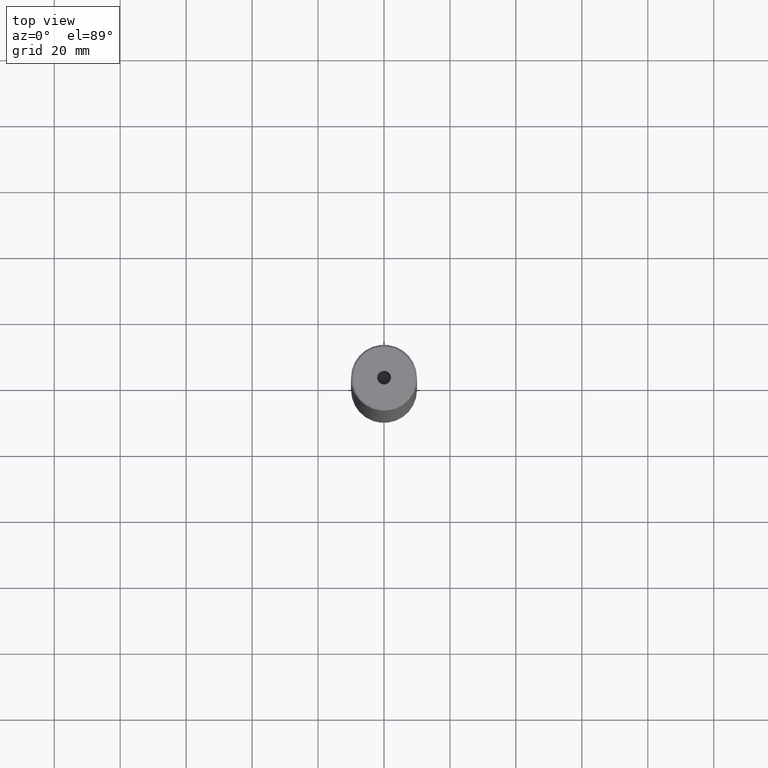
[diagram: clean part render]
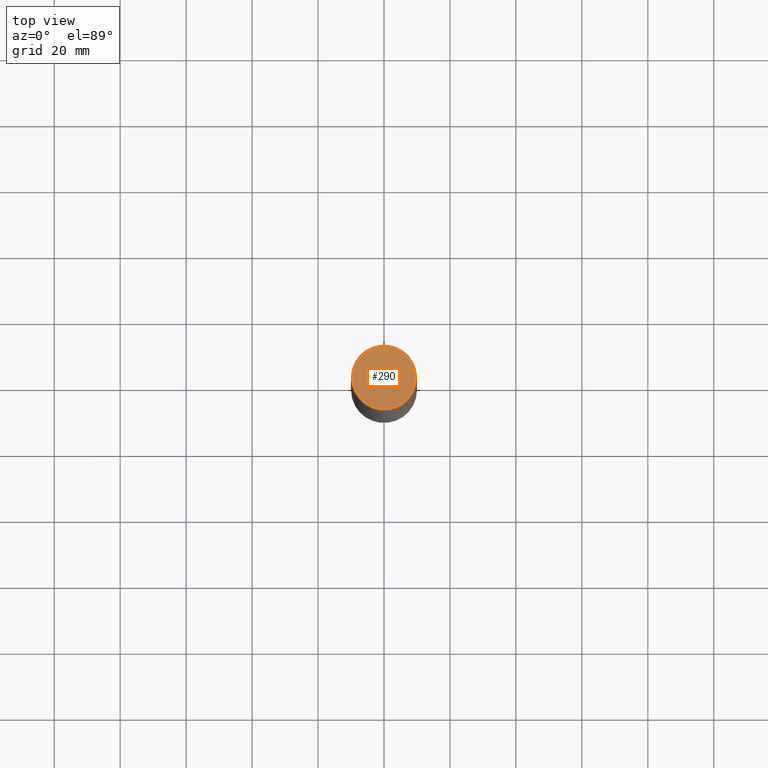
[diagram: same view with one face highlighted and labeled with its STEP entity id]
A machine part, top view. The second image highlights one B-rep face of the part: STEP entity #290.
In plain terms, the highlighted planar face has unit normal (0, -0, 1).
Its self-contained STEP definition (entity closure, byte-faithful):
#13 = CIRCLE ( 'NONE', #237, 2.099999999999998757 ) ;
#30 = CARTESIAN_POINT ( 'NONE',  ( 0.000000000000000000, 0.000000000000000000, 0.000000000000000000 ) ) ;
#50 = AXIS2_PLACEMENT_3D ( 'NONE', #482, #578, #246 ) ;
#70 = EDGE_LOOP ( 'NONE', ( #326, #411 ) ) ;
#75 = EDGE_CURVE ( 'NONE', #558, #91, #254, .T. ) ;
#76 = CIRCLE ( 'NONE', #433, 9.500000000000008882 ) ;
#89 = VERTEX_POINT ( 'NONE', #572 ) ;
#91 = VERTEX_POINT ( 'NONE', #530 ) ;
#94 = EDGE_CURVE ( 'NONE', #140, #89, #171, .T. ) ;
#113 = FACE_OUTER_BOUND ( 'NONE', #70, .T. ) ;
#115 = DIRECTION ( 'NONE',  ( 1.000000000000000000, 0.000000000000000000, 0.000000000000000000 ) ) ;
#140 = VERTEX_POINT ( 'NONE', #453 ) ;
#161 = CARTESIAN_POINT ( 'NONE',  ( 0.000000000000000000, 0.000000000000000000, 0.000000000000000000 ) ) ;
#171 = CIRCLE ( 'NONE', #391, 9.500000000000008882 ) ;
#183 = DIRECTION ( 'NONE',  ( -0.000000000000000000, -0.000000000000000000, 1.000000000000000000 ) ) ;
#196 = DIRECTION ( 'NONE',  ( -0.000000000000000000, -0.000000000000000000, 1.000000000000000000 ) ) ;
#214 = ORIENTED_EDGE ( 'NONE', *, *, #233, .F. ) ;
#217 = AXIS2_PLACEMENT_3D ( 'NONE', #517, #183, #239 ) ;
#233 = EDGE_CURVE ( 'NONE', #91, #558, #13, .T. ) ;
#237 = AXIS2_PLACEMENT_3D ( 'NONE', #280, #474, #427 ) ;
#239 = DIRECTION ( 'NONE',  ( 1.000000000000000000, 0.000000000000000000, 0.000000000000000000 ) ) ;
#246 = DIRECTION ( 'NONE',  ( 1.000000000000000000, 0.000000000000000000, 0.000000000000000000 ) ) ;
#254 = CIRCLE ( 'NONE', #217, 2.099999999999998757 ) ;
#280 = CARTESIAN_POINT ( 'NONE',  ( 0.000000000000000000, 0.000000000000000000, -1.990051048614449116E-16 ) ) ;
#282 = DIRECTION ( 'NONE',  ( 1.000000000000000000, 0.000000000000000000, 0.000000000000000000 ) ) ;
#287 = PLANE ( 'NONE',  #50 ) ;
#290 = ADVANCED_FACE ( 'NONE', ( #527, #113 ), #287, .T. ) ;
#326 = ORIENTED_EDGE ( 'NONE', *, *, #498, .T. ) ;
#327 = DIRECTION ( 'NONE',  ( -0.000000000000000000, -0.000000000000000000, 1.000000000000000000 ) ) ;
#371 = CARTESIAN_POINT ( 'NONE',  ( 2.099999999999998757, 0.000000000000000000, -1.990051048614449116E-16 ) ) ;
#391 = AXIS2_PLACEMENT_3D ( 'NONE', #161, #327, #115 ) ;
#411 = ORIENTED_EDGE ( 'NONE', *, *, #94, .T. ) ;
#420 = EDGE_LOOP ( 'NONE', ( #460, #214 ) ) ;
#427 = DIRECTION ( 'NONE',  ( 1.000000000000000000, 0.000000000000000000, 0.000000000000000000 ) ) ;
#433 = AXIS2_PLACEMENT_3D ( 'NONE', #30, #196, #282 ) ;
#453 = CARTESIAN_POINT ( 'NONE',  ( 9.500000000000008882, 1.194030629168669864E-15, 0.000000000000000000 ) ) ;
#460 = ORIENTED_EDGE ( 'NONE', *, *, #75, .F. ) ;
#474 = DIRECTION ( 'NONE',  ( -0.000000000000000000, -0.000000000000000000, 1.000000000000000000 ) ) ;
#482 = CARTESIAN_POINT ( 'NONE',  ( 0.000000000000000000, 0.000000000000000000, 0.000000000000000000 ) ) ;
#498 = EDGE_CURVE ( 'NONE', #89, #140, #76, .T. ) ;
#517 = CARTESIAN_POINT ( 'NONE',  ( 0.000000000000000000, 0.000000000000000000, -1.990051048614449116E-16 ) ) ;
#527 = FACE_BOUND ( 'NONE', #420, .T. ) ;
#530 = CARTESIAN_POINT ( 'NONE',  ( -2.099999999999998757, 2.571758278209440478E-16, -1.990051048614449116E-16 ) ) ;
#558 = VERTEX_POINT ( 'NONE', #371 ) ;
#572 = CARTESIAN_POINT ( 'NONE',  ( -9.500000000000008882, 0.000000000000000000, 0.000000000000000000 ) ) ;
#578 = DIRECTION ( 'NONE',  ( 0.000000000000000000, -0.000000000000000000, 1.000000000000000000 ) ) ;